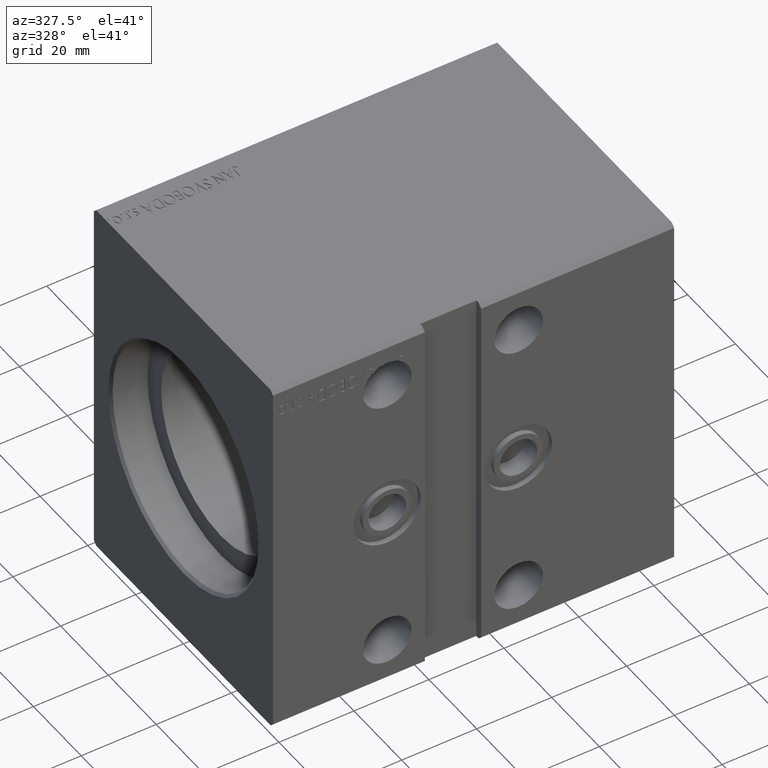
[diagram: clean part render]
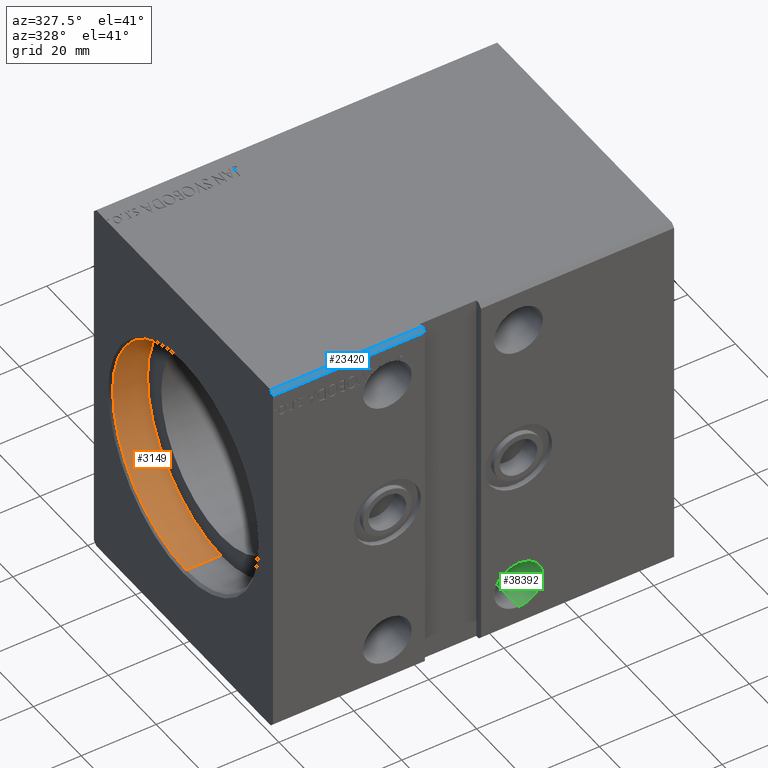
[diagram: same view with three faces highlighted in distinct colors, each labeled with its STEP entity id]
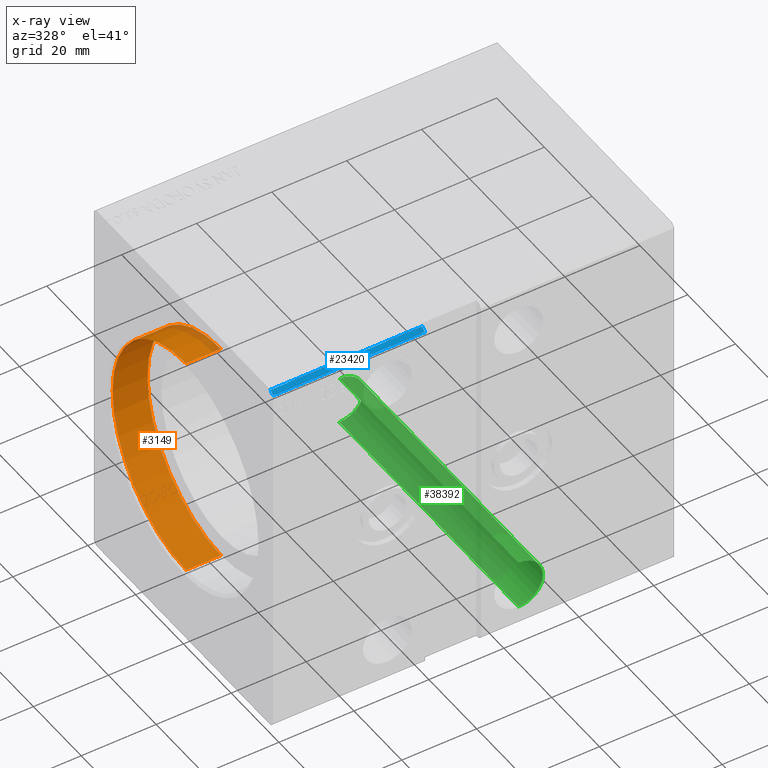
[diagram: x-ray of the same camera — body ghosted, the three highlighted faces saturated]
A machine part, auxiliary view with three faces highlighted in distinct colors.
The next image is the same camera in x-ray (body ghosted, the three faces saturated) — at least one of them is partly hidden behind the body in this view.
Their STEP definitions:

[orange] entity #3149 — the highlighted cylindrical surface (partial cylindrical patch) has radius 30.75 mm, axis along (-1, -0, -0).
#205 = EDGE_CURVE ( 'NONE', #31291, #3117, #24541, .T. ) ;
#700 = EDGE_LOOP ( 'NONE', ( #13369, #22939, #36329, #10605 ) ) ;
#940 = CARTESIAN_POINT ( 'NONE',  ( 10.00000000000000000, 0.000000000000000000, 0.000000000000000000 ) ) ;
#1684 = CARTESIAN_POINT ( 'NONE',  ( 10.00000000000000000, 0.000000000000000000, 30.75000000000000355 ) ) ;
#3117 = VERTEX_POINT ( 'NONE', #9029 ) ;
#3149 = ADVANCED_FACE ( 'NONE', ( #36446 ), #21181, .F. ) ;
#3169 = DIRECTION ( 'NONE',  ( 0.000000000000000000, 0.000000000000000000, -1.000000000000000000 ) ) ;
#3561 = CARTESIAN_POINT ( 'NONE',  ( 0.7000000000000234923, 0.000000000000000000, 0.000000000000000000 ) ) ;
#3635 = VERTEX_POINT ( 'NONE', #8712 ) ;
#7130 = DIRECTION ( 'NONE',  ( -1.000000000000000000, 0.000000000000000000, 0.000000000000000000 ) ) ;
#7501 = DIRECTION ( 'NONE',  ( -1.000000000000000000, -0.000000000000000000, -0.000000000000000000 ) ) ;
#8712 = CARTESIAN_POINT ( 'NONE',  ( 10.00000000000000000, 0.000000000000000000, 30.75000000000000355 ) ) ;
#9029 = CARTESIAN_POINT ( 'NONE',  ( 0.7000000000000234923, 3.765788907378111328E-15, -30.75000000000000355 ) ) ;
#9231 = DIRECTION ( 'NONE',  ( -1.000000000000000000, -0.000000000000000000, -0.000000000000000000 ) ) ;
#10605 = ORIENTED_EDGE ( 'NONE', *, *, #205, .T. ) ;
#10958 = CARTESIAN_POINT ( 'NONE',  ( 10.00000000000000000, 3.765788907378111328E-15, -30.75000000000000355 ) ) ;
#12179 = EDGE_CURVE ( 'NONE', #3635, #39123, #31371, .T. ) ;
#12322 = DIRECTION ( 'NONE',  ( 0.000000000000000000, 0.000000000000000000, 1.000000000000000000 ) ) ;
#12675 = LINE ( 'NONE', #25259, #29017 ) ;
#13369 = ORIENTED_EDGE ( 'NONE', *, *, #22854, .F. ) ;
#13824 = LINE ( 'NONE', #1684, #24748 ) ;
#14821 = AXIS2_PLACEMENT_3D ( 'NONE', #940, #7130, #27049 ) ;
#15695 = EDGE_CURVE ( 'NONE', #3635, #31291, #13824, .T. ) ;
#16102 = CARTESIAN_POINT ( 'NONE',  ( 0.7000000000000234923, 0.000000000000000000, 30.75000000000000355 ) ) ;
#19824 = DIRECTION ( 'NONE',  ( -1.000000000000000000, -0.000000000000000000, -0.000000000000000000 ) ) ;
#21181 = CYLINDRICAL_SURFACE ( 'NONE', #33164, 30.75000000000000355 ) ;
#22854 = EDGE_CURVE ( 'NONE', #39123, #3117, #12675, .T. ) ;
#22939 = ORIENTED_EDGE ( 'NONE', *, *, #12179, .F. ) ;
#24541 = CIRCLE ( 'NONE', #27838, 30.75000000000000355 ) ;
#24748 = VECTOR ( 'NONE', #19824, 1000.000000000000000 ) ;
#25259 = CARTESIAN_POINT ( 'NONE',  ( 10.00000000000000000, 3.765788907378111328E-15, -30.75000000000000355 ) ) ;
#25817 = DIRECTION ( 'NONE',  ( -1.000000000000000000, 0.000000000000000000, 0.000000000000000000 ) ) ;
#27049 = DIRECTION ( 'NONE',  ( 0.000000000000000000, 0.000000000000000000, 1.000000000000000000 ) ) ;
#27838 = AXIS2_PLACEMENT_3D ( 'NONE', #3561, #25817, #3169 ) ;
#29017 = VECTOR ( 'NONE', #7501, 1000.000000000000000 ) ;
#31291 = VERTEX_POINT ( 'NONE', #16102 ) ;
#31371 = CIRCLE ( 'NONE', #14821, 30.75000000000000355 ) ;
#33164 = AXIS2_PLACEMENT_3D ( 'NONE', #33761, #9231, #12322 ) ;
#33761 = CARTESIAN_POINT ( 'NONE',  ( 10.00000000000000000, 0.000000000000000000, 0.000000000000000000 ) ) ;
#36329 = ORIENTED_EDGE ( 'NONE', *, *, #15695, .T. ) ;
#36446 = FACE_OUTER_BOUND ( 'NONE', #700, .T. ) ;
#39123 = VERTEX_POINT ( 'NONE', #10958 ) ;

[blue] entity #23420 — the highlighted planar face has unit normal (0, 0.7071, -0.7071).
#595 = EDGE_LOOP ( 'NONE', ( #14094, #5007, #9159, #27901 ) ) ;
#1543 = LINE ( 'NONE', #8542, #3779 ) ;
#1985 = CARTESIAN_POINT ( 'NONE',  ( 107.0000000000000000, -36.50000000000001421, 49.99999999999998579 ) ) ;
#2995 = VECTOR ( 'NONE', #4850, 1000.000000000000114 ) ;
#3779 = VECTOR ( 'NONE', #4841, 1000.000000000000114 ) ;
#4064 = CARTESIAN_POINT ( 'NONE',  ( 40.50000000000000000, -36.50000000000001421, 49.99999999999998579 ) ) ;
#4841 = DIRECTION ( 'NONE',  ( 0.000000000000000000, -0.7071067811865474617, -0.7071067811865474617 ) ) ;
#4850 = DIRECTION ( 'NONE',  ( -4.906538933386797858E-17, 0.7071067811865474617, 0.7071067811865474617 ) ) ;
#5007 = ORIENTED_EDGE ( 'NONE', *, *, #36509, .T. ) ;
#5271 = VECTOR ( 'NONE', #36609, 1000.000000000000000 ) ;
#5570 = EDGE_CURVE ( 'NONE', #20696, #8662, #29329, .T. ) ;
#8456 = CARTESIAN_POINT ( 'NONE',  ( 0.000000000000000000, -36.50000000000001421, 49.99999999999998579 ) ) ;
#8542 = CARTESIAN_POINT ( 'NONE',  ( 0.000000000000000000, -36.50000000000001421, 49.99999999999998579 ) ) ;
#8662 = VERTEX_POINT ( 'NONE', #14558 ) ;
#9159 = ORIENTED_EDGE ( 'NONE', *, *, #21832, .T. ) ;
#10313 = PLANE ( 'NONE',  #23091 ) ;
#14094 = ORIENTED_EDGE ( 'NONE', *, *, #5570, .F. ) ;
#14558 = CARTESIAN_POINT ( 'NONE',  ( 0.000000000000000000, -37.50000000000001421, 48.99999999999998579 ) ) ;
#15589 = CARTESIAN_POINT ( 'NONE',  ( 40.50000000000000000, -37.50000000000001421, 48.99999999999998579 ) ) ;
#16204 = VERTEX_POINT ( 'NONE', #4064 ) ;
#17988 = EDGE_CURVE ( 'NONE', #35824, #8662, #1543, .T. ) ;
#19593 = CARTESIAN_POINT ( 'NONE',  ( 107.0000000000000000, -36.50000000000001421, 49.99999999999998579 ) ) ;
#20696 = VERTEX_POINT ( 'NONE', #15589 ) ;
#21832 = EDGE_CURVE ( 'NONE', #16204, #35824, #27527, .T. ) ;
#23091 = AXIS2_PLACEMENT_3D ( 'NONE', #19593, #23422, #35269 ) ;
#23420 = ADVANCED_FACE ( 'NONE', ( #38542 ), #10313, .F. ) ;
#23422 = DIRECTION ( 'NONE',  ( 0.000000000000000000, 0.7071067811865475727, -0.7071067811865475727 ) ) ;
#26233 = CARTESIAN_POINT ( 'NONE',  ( 107.0000000000000000, -37.50000000000001421, 48.99999999999998579 ) ) ;
#27527 = LINE ( 'NONE', #1985, #5271 ) ;
#27901 = ORIENTED_EDGE ( 'NONE', *, *, #17988, .T. ) ;
#29329 = LINE ( 'NONE', #26233, #39801 ) ;
#33089 = CARTESIAN_POINT ( 'NONE',  ( 40.49999999999999289, -36.50000000000001421, 49.99999999999998579 ) ) ;
#35269 = DIRECTION ( 'NONE',  ( 0.000000000000000000, 0.7071067811865474617, 0.7071067811865474617 ) ) ;
#35824 = VERTEX_POINT ( 'NONE', #8456 ) ;
#36509 = EDGE_CURVE ( 'NONE', #20696, #16204, #39672, .T. ) ;
#36609 = DIRECTION ( 'NONE',  ( -1.000000000000000000, -0.000000000000000000, -0.000000000000000000 ) ) ;
#38204 = DIRECTION ( 'NONE',  ( -1.000000000000000000, -0.000000000000000000, -0.000000000000000000 ) ) ;
#38542 = FACE_OUTER_BOUND ( 'NONE', #595, .T. ) ;
#39672 = LINE ( 'NONE', #33089, #2995 ) ;
#39801 = VECTOR ( 'NONE', #38204, 1000.000000000000000 ) ;

[green] entity #38392 — the highlighted cylindrical surface (edge-blend (fillet) strip) has radius 6.5 mm, axis along (-0, -1, -0).
#676 = EDGE_CURVE ( 'NONE', #10113, #3074, #20530, .T. ) ;
#1053 = DIRECTION ( 'NONE',  ( 0.000000000000000000, 0.000000000000000000, 1.000000000000000000 ) ) ;
#2908 = CARTESIAN_POINT ( 'NONE',  ( 65.50000000000001421, 37.50000000000002842, -37.99999999999999289 ) ) ;
#2967 = EDGE_LOOP ( 'NONE', ( #10919, #21751, #11337, #31646 ) ) ;
#3074 = VERTEX_POINT ( 'NONE', #23869 ) ;
#3105 = CARTESIAN_POINT ( 'NONE',  ( 65.50000000000001421, 37.50000000000002842, -44.49999999999999289 ) ) ;
#5377 = FACE_OUTER_BOUND ( 'NONE', #2967, .T. ) ;
#6778 = VECTOR ( 'NONE', #11058, 1000.000000000000000 ) ;
#7249 = VERTEX_POINT ( 'NONE', #27681 ) ;
#10113 = VERTEX_POINT ( 'NONE', #40667 ) ;
#10677 = AXIS2_PLACEMENT_3D ( 'NONE', #11211, #36357, #29747 ) ;
#10919 = ORIENTED_EDGE ( 'NONE', *, *, #676, .F. ) ;
#11058 = DIRECTION ( 'NONE',  ( -0.000000000000000000, -1.000000000000000000, -5.507058653894625853E-17 ) ) ;
#11154 = VECTOR ( 'NONE', #29603, 1000.000000000000000 ) ;
#11211 = CARTESIAN_POINT ( 'NONE',  ( 65.50000000000001421, 37.50000000000002842, -37.99999999999999289 ) ) ;
#11337 = ORIENTED_EDGE ( 'NONE', *, *, #20515, .T. ) ;
#15261 = DIRECTION ( 'NONE',  ( 0.000000000000000000, 0.000000000000000000, -1.000000000000000000 ) ) ;
#18772 = DIRECTION ( 'NONE',  ( -0.000000000000000000, -1.000000000000000000, -5.507058653894625853E-17 ) ) ;
#19612 = CARTESIAN_POINT ( 'NONE',  ( 65.50000000000001421, -37.50000000000001421, -38.00000000000000000 ) ) ;
#19735 = EDGE_CURVE ( 'NONE', #26004, #10113, #34393, .T. ) ;
#20515 = EDGE_CURVE ( 'NONE', #26004, #7249, #23424, .T. ) ;
#20530 = LINE ( 'NONE', #32901, #6778 ) ;
#21406 = AXIS2_PLACEMENT_3D ( 'NONE', #19612, #29282, #1053 ) ;
#21751 = ORIENTED_EDGE ( 'NONE', *, *, #19735, .F. ) ;
#23424 = LINE ( 'NONE', #32497, #11154 ) ;
#23869 = CARTESIAN_POINT ( 'NONE',  ( 65.50000000000001421, -37.50000000000001421, -31.50000000000000000 ) ) ;
#25392 = CIRCLE ( 'NONE', #21406, 6.499999999999999112 ) ;
#26004 = VERTEX_POINT ( 'NONE', #3105 ) ;
#27435 = CYLINDRICAL_SURFACE ( 'NONE', #35968, 6.499999999999999112 ) ;
#27681 = CARTESIAN_POINT ( 'NONE',  ( 65.50000000000001421, -37.50000000000001421, -44.50000000000000000 ) ) ;
#29282 = DIRECTION ( 'NONE',  ( -0.000000000000000000, 1.000000000000000000, 0.000000000000000000 ) ) ;
#29603 = DIRECTION ( 'NONE',  ( -0.000000000000000000, -1.000000000000000000, -5.507058653894625853E-17 ) ) ;
#29747 = DIRECTION ( 'NONE',  ( 0.000000000000000000, 0.000000000000000000, -1.000000000000000000 ) ) ;
#31646 = ORIENTED_EDGE ( 'NONE', *, *, #35733, .F. ) ;
#32497 = CARTESIAN_POINT ( 'NONE',  ( 65.50000000000001421, 37.50000000000002842, -44.49999999999999289 ) ) ;
#32901 = CARTESIAN_POINT ( 'NONE',  ( 65.50000000000001421, 37.50000000000002842, -31.49999999999999289 ) ) ;
#34393 = CIRCLE ( 'NONE', #10677, 6.499999999999999112 ) ;
#35733 = EDGE_CURVE ( 'NONE', #3074, #7249, #25392, .T. ) ;
#35968 = AXIS2_PLACEMENT_3D ( 'NONE', #2908, #18772, #15261 ) ;
#36357 = DIRECTION ( 'NONE',  ( 0.000000000000000000, -1.000000000000000000, -5.507058653894625853E-17 ) ) ;
#38392 = ADVANCED_FACE ( 'NONE', ( #5377 ), #27435, .F. ) ;
#40667 = CARTESIAN_POINT ( 'NONE',  ( 65.50000000000001421, 37.50000000000002842, -31.49999999999999289 ) ) ;